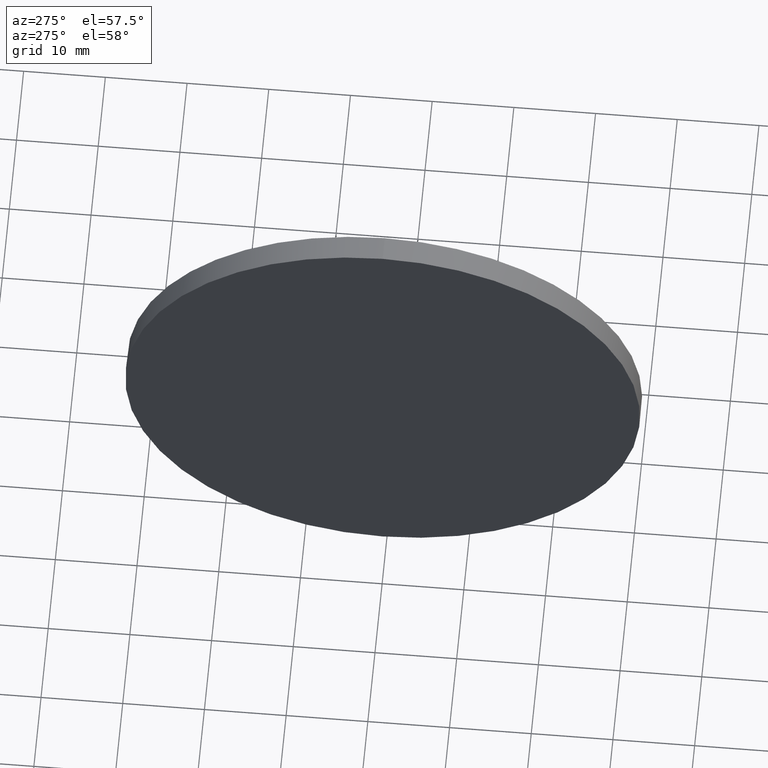
[diagram: clean part render]
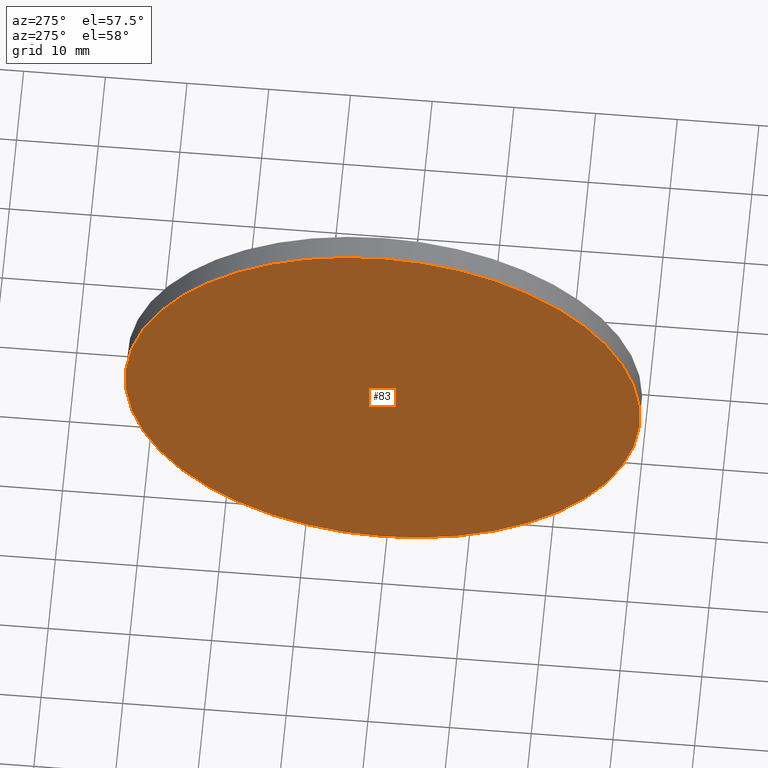
[diagram: same view with one face highlighted and labeled with its STEP entity id]
A machine part, auxiliary view. The second image highlights one B-rep face of the part: STEP entity #83.
In plain terms, the highlighted planar face has unit normal (1, 0, 0).
Its self-contained STEP definition (entity closure, byte-faithful):
#2 = CARTESIAN_POINT ( 'NONE',  ( 225.9653141997173400, 130.4671098528244200, 0.0000000000000000000 ) ) ;
#3 = CIRCLE ( 'NONE', #151, 31.50000000000000000 ) ;
#8 = CARTESIAN_POINT ( 'NONE',  ( 225.9653141997173400, 130.4671098528244200, -31.50000000000000000 ) ) ;
#17 = ORIENTED_EDGE ( 'NONE', *, *, #68, .T. ) ;
#19 = CARTESIAN_POINT ( 'NONE',  ( 225.9653141997173400, 130.4671098528244200, 0.0000000000000000000 ) ) ;
#21 = ORIENTED_EDGE ( 'NONE', *, *, #66, .T. ) ;
#44 = DIRECTION ( 'NONE',  ( 0.0000000000000000000, 0.0000000000000000000, 1.000000000000000000 ) ) ;
#47 = DIRECTION ( 'NONE',  ( 0.0000000000000000000, 0.0000000000000000000, -1.000000000000000000 ) ) ;
#58 = PLANE ( 'NONE',  #167 ) ;
#66 = EDGE_CURVE ( 'NONE', #142, #91, #108, .T. ) ;
#68 = EDGE_CURVE ( 'NONE', #91, #142, #3, .T. ) ;
#71 = DIRECTION ( 'NONE',  ( -1.000000000000000000, -0.0000000000000000000, -0.0000000000000000000 ) ) ;
#83 = ADVANCED_FACE ( 'NONE', ( #186 ), #58, .F. ) ;
#84 = DIRECTION ( 'NONE',  ( -1.000000000000000000, -0.0000000000000000000, -0.0000000000000000000 ) ) ;
#86 = CARTESIAN_POINT ( 'NONE',  ( 225.9653141997173400, 130.4671098528244200, 0.0000000000000000000 ) ) ;
#87 = DIRECTION ( 'NONE',  ( 0.0000000000000000000, 0.0000000000000000000, 1.000000000000000000 ) ) ;
#90 = CARTESIAN_POINT ( 'NONE',  ( 225.9653141997173400, 130.4671098528244200, 31.50000000000000000 ) ) ;
#91 = VERTEX_POINT ( 'NONE', #8 ) ;
#108 = CIRCLE ( 'NONE', #159, 31.50000000000000000 ) ;
#113 = DIRECTION ( 'NONE',  ( 1.000000000000000000, 0.0000000000000000000, 0.0000000000000000000 ) ) ;
#132 = EDGE_LOOP ( 'NONE', ( #21, #17 ) ) ;
#142 = VERTEX_POINT ( 'NONE', #90 ) ;
#151 = AXIS2_PLACEMENT_3D ( 'NONE', #2, #71, #44 ) ;
#159 = AXIS2_PLACEMENT_3D ( 'NONE', #19, #84, #87 ) ;
#167 = AXIS2_PLACEMENT_3D ( 'NONE', #86, #113, #47 ) ;
#186 = FACE_OUTER_BOUND ( 'NONE', #132, .T. ) ;